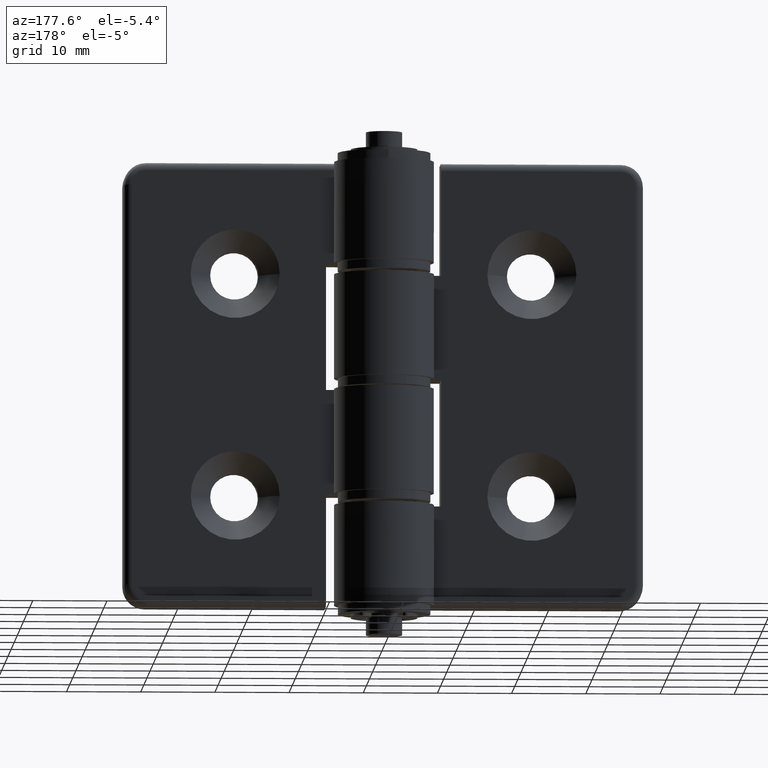
[diagram: clean part render]
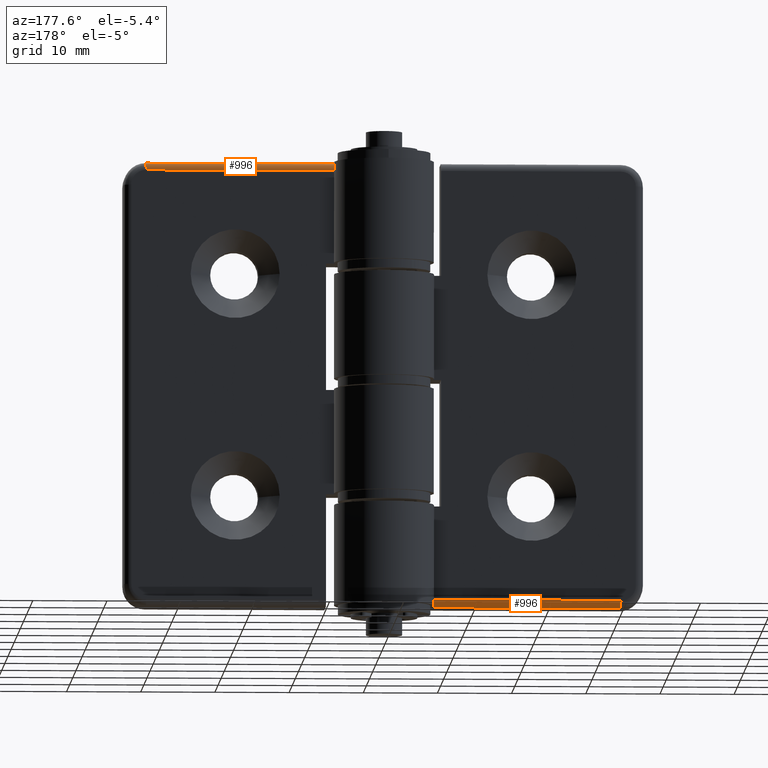
[diagram: same view with one multi-face feature highlighted, each face labeled with its STEP entity id]
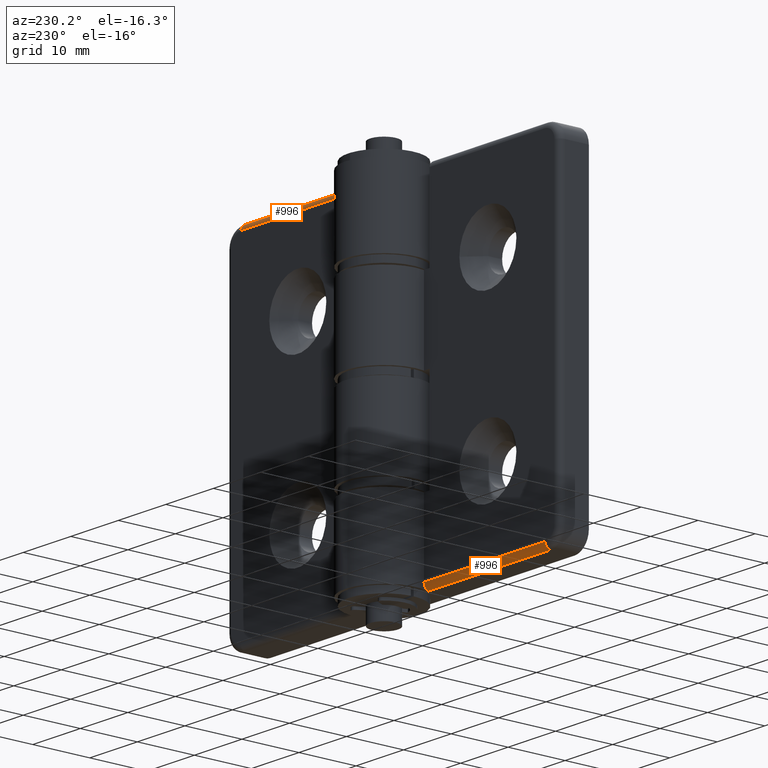
[diagram: same view with one multi-face feature highlighted, each face labeled with its STEP entity id]
A machine part, auxiliary view. The highlighted faces form ONE feature: a constant-radius fillet chain: 2 tangent blend faces with common blend radius 1 mm. The faces share edges in the B-rep.
A second angle (auxiliary view) of the same feature is appended — it is thin or edge-on in the first view.
Their STEP definitions:
[1] entity #996 (Cylinder):
#121=FACE_OUTER_BOUND('',#181,.T.);
#181=EDGE_LOOP('',(#697,#698,#699,#700));
#260=B_SPLINE_CURVE_WITH_KNOTS('',3,(#1553,#1554,#1555,#1556,#1557,#1558,
#1559,#1560,#1561,#1562),.UNSPECIFIED.,.F.,.F.,(4,2,2,2,4),(0.159651496014291,
0.199584540095299,0.239517584176308,0.277008755323114,0.31449992646992),
 .UNSPECIFIED.);
#261=LINE('',#1551,#334);
#262=LINE('',#1563,#335);
#334=VECTOR('',#1204,25.4303729177373);
#335=VECTOR('',#1205,25.7502000032001);
#407=CIRCLE('',#1063,0.999999999999996);
#468=VERTEX_POINT('',#1547);
#469=VERTEX_POINT('',#1548);
#470=VERTEX_POINT('',#1550);
#471=VERTEX_POINT('',#1552);
#562=EDGE_CURVE('',#468,#469,#407,.T.);
#563=EDGE_CURVE('',#469,#470,#261,.T.);
#564=EDGE_CURVE('',#470,#471,#260,.F.);
#565=EDGE_CURVE('',#471,#468,#262,.T.);
#697=ORIENTED_EDGE('',*,*,#562,.T.);
#698=ORIENTED_EDGE('',*,*,#563,.T.);
#699=ORIENTED_EDGE('',*,*,#564,.T.);
#700=ORIENTED_EDGE('',*,*,#565,.T.);
#967=CYLINDRICAL_SURFACE('',#1062,1.);
#996=ADVANCED_FACE('',(#121),#967,.T.);
#1062=AXIS2_PLACEMENT_3D('',#1546,#1200,#1201);
#1063=AXIS2_PLACEMENT_3D('',#1549,#1202,#1203);
#1200=DIRECTION('center_axis',(1.,2.22044604925031E-16,0.));
#1201=DIRECTION('ref_axis',(0.,0.707106781186549,-0.707106781186546));
#1202=DIRECTION('center_axis',(1.,0.,0.));
#1203=DIRECTION('ref_axis',(0.,0.,-1.));
#1204=DIRECTION('',(1.,2.22044604925031E-16,0.));
#1205=DIRECTION('',(-1.,-2.22044604925031E-16,0.));
#1546=CARTESIAN_POINT('Origin',(-26.25,4.2,-59.));
#1547=CARTESIAN_POINT('',(-32.,4.2,-60.));
#1548=CARTESIAN_POINT('',(-32.,5.2,-59.));
#1549=CARTESIAN_POINT('Origin',(-32.,4.2,-59.));
#1550=CARTESIAN_POINT('',(-6.56962708226274,5.2,-59.));
#1551=CARTESIAN_POINT('',(-26.25,5.2,-59.));
#1552=CARTESIAN_POINT('',(-6.2497999967999,4.2,-60.));
#1553=CARTESIAN_POINT('Ctrl Pts',(-6.2497999967999,4.2,-60.));
#1554=CARTESIAN_POINT('Ctrl Pts',(-6.30008605230932,4.32324619198504,-60.));
#1555=CARTESIAN_POINT('Ctrl Pts',(-6.34996771551148,4.45702212452064,-59.9757766391249));
#1556=CARTESIAN_POINT('Ctrl Pts',(-6.43456099026227,4.70640944280737,-59.8727828654644));
#1557=CARTESIAN_POINT('Ctrl Pts',(-6.46946714426976,4.82190868510178,-59.7939008493045));
#1558=CARTESIAN_POINT('Ctrl Pts',(-6.51962833209589,4.99930992521233,-59.6132954453148));
#1559=CARTESIAN_POINT('Ctrl Pts',(-6.53901391831275,5.07474787379535,-59.5022335753906));
#1560=CARTESIAN_POINT('Ctrl Pts',(-6.56390670142553,5.17510270920278,-59.2580642745219));
#1561=CARTESIAN_POINT('Ctrl Pts',(-6.56962708226274,5.2,-59.1249705704894));
#1562=CARTESIAN_POINT('Ctrl Pts',(-6.56962708226274,5.2,-59.));
#1563=CARTESIAN_POINT('',(-26.25,4.2,-60.));
[2] entity #996 (Cylinder):
#121=FACE_OUTER_BOUND('',#181,.T.);
#181=EDGE_LOOP('',(#697,#698,#699,#700));
#260=B_SPLINE_CURVE_WITH_KNOTS('',3,(#1553,#1554,#1555,#1556,#1557,#1558,
#1559,#1560,#1561,#1562),.UNSPECIFIED.,.F.,.F.,(4,2,2,2,4),(0.159651496014291,
0.199584540095299,0.239517584176308,0.277008755323114,0.31449992646992),
 .UNSPECIFIED.);
#261=LINE('',#1551,#334);
#262=LINE('',#1563,#335);
#334=VECTOR('',#1204,25.4303729177373);
#335=VECTOR('',#1205,25.7502000032001);
#407=CIRCLE('',#1063,0.999999999999996);
#468=VERTEX_POINT('',#1547);
#469=VERTEX_POINT('',#1548);
#470=VERTEX_POINT('',#1550);
#471=VERTEX_POINT('',#1552);
#562=EDGE_CURVE('',#468,#469,#407,.T.);
#563=EDGE_CURVE('',#469,#470,#261,.T.);
#564=EDGE_CURVE('',#470,#471,#260,.F.);
#565=EDGE_CURVE('',#471,#468,#262,.T.);
#697=ORIENTED_EDGE('',*,*,#562,.T.);
#698=ORIENTED_EDGE('',*,*,#563,.T.);
#699=ORIENTED_EDGE('',*,*,#564,.T.);
#700=ORIENTED_EDGE('',*,*,#565,.T.);
#967=CYLINDRICAL_SURFACE('',#1062,1.);
#996=ADVANCED_FACE('',(#121),#967,.T.);
#1062=AXIS2_PLACEMENT_3D('',#1546,#1200,#1201);
#1063=AXIS2_PLACEMENT_3D('',#1549,#1202,#1203);
#1200=DIRECTION('center_axis',(1.,2.22044604925031E-16,0.));
#1201=DIRECTION('ref_axis',(0.,0.707106781186549,-0.707106781186546));
#1202=DIRECTION('center_axis',(1.,0.,0.));
#1203=DIRECTION('ref_axis',(0.,0.,-1.));
#1204=DIRECTION('',(1.,2.22044604925031E-16,0.));
#1205=DIRECTION('',(-1.,-2.22044604925031E-16,0.));
#1546=CARTESIAN_POINT('Origin',(-26.25,4.2,-59.));
#1547=CARTESIAN_POINT('',(-32.,4.2,-60.));
#1548=CARTESIAN_POINT('',(-32.,5.2,-59.));
#1549=CARTESIAN_POINT('Origin',(-32.,4.2,-59.));
#1550=CARTESIAN_POINT('',(-6.56962708226274,5.2,-59.));
#1551=CARTESIAN_POINT('',(-26.25,5.2,-59.));
#1552=CARTESIAN_POINT('',(-6.2497999967999,4.2,-60.));
#1553=CARTESIAN_POINT('Ctrl Pts',(-6.2497999967999,4.2,-60.));
#1554=CARTESIAN_POINT('Ctrl Pts',(-6.30008605230932,4.32324619198504,-60.));
#1555=CARTESIAN_POINT('Ctrl Pts',(-6.34996771551148,4.45702212452064,-59.9757766391249));
#1556=CARTESIAN_POINT('Ctrl Pts',(-6.43456099026227,4.70640944280737,-59.8727828654644));
#1557=CARTESIAN_POINT('Ctrl Pts',(-6.46946714426976,4.82190868510178,-59.7939008493045));
#1558=CARTESIAN_POINT('Ctrl Pts',(-6.51962833209589,4.99930992521233,-59.6132954453148));
#1559=CARTESIAN_POINT('Ctrl Pts',(-6.53901391831275,5.07474787379535,-59.5022335753906));
#1560=CARTESIAN_POINT('Ctrl Pts',(-6.56390670142553,5.17510270920278,-59.2580642745219));
#1561=CARTESIAN_POINT('Ctrl Pts',(-6.56962708226274,5.2,-59.1249705704894));
#1562=CARTESIAN_POINT('Ctrl Pts',(-6.56962708226274,5.2,-59.));
#1563=CARTESIAN_POINT('',(-26.25,4.2,-60.));